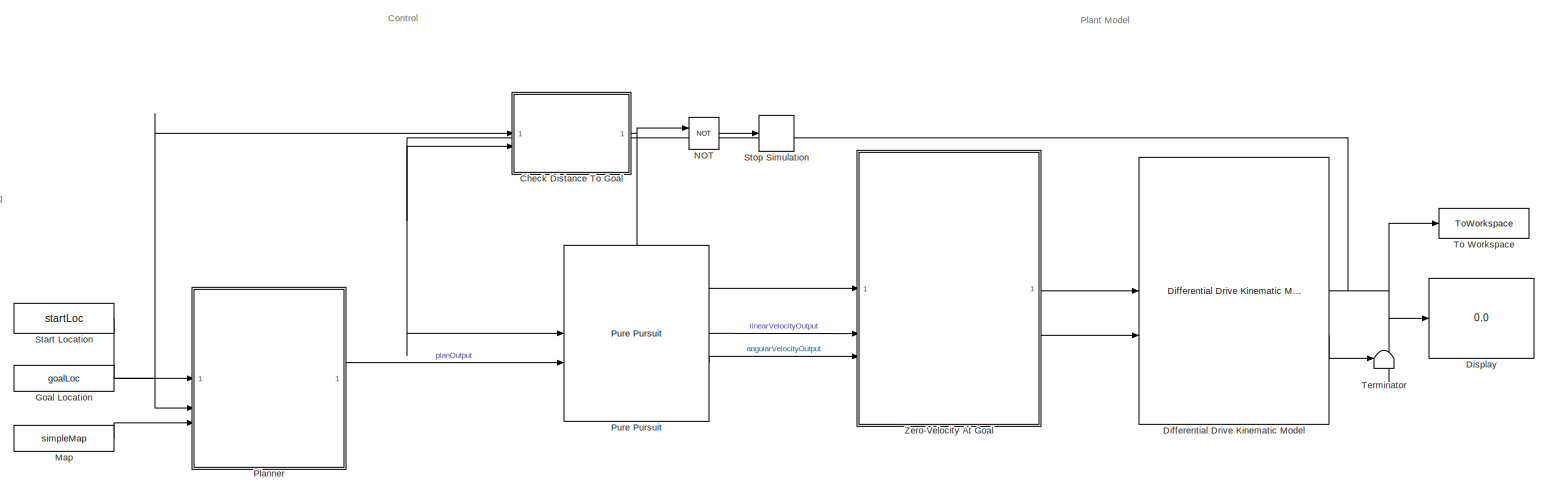
[diagram: root canvas - part 1/3, most of the canvas]
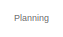
[diagram: root canvas - part 2/3, middle left region]
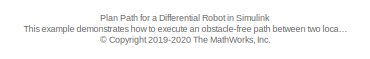
[diagram: root canvas - part 3/3, bottom left region]
MODEL slx_7b660b14549b
KIND model
CONFIG AbsTol = auto
CONFIG EnableMultiTasking = off
CONFIG FixedStep = auto
CONFIG MaxStep = auto
CONFIG MinStep = auto
CONFIG RelTol = 1e-3
CONFIG SampleTimeConstraint = Unconstrained
CONFIG SolverName = VariableStepAuto
CONFIG StartTime = 0.0
CONFIG StopTime = inf
WORKSPACE source: mxarray member
WORKSPACE Sig: Simulink.Signal (value not decoded)
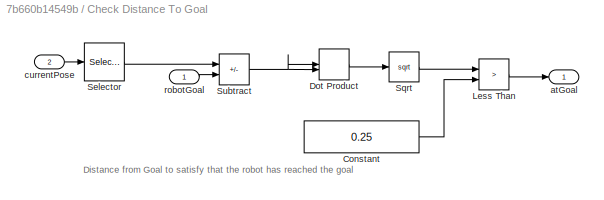
BLOCK [SubSystem] Check Distance To Goal
BLOCK [Constant] Check Distance To Goal/Constant
  Value = 0.25
BLOCK [DotProduct] Check Distance To Goal/Dot Product
  OutDataTypeStr = Inherit: Inherit via internal rule
BLOCK [RelationalOperator] Check Distance To Goal/Less Than
  InputSameDT = off
  Operator = >
  OutDataTypeStr = boolean
  RndMeth = Simplest
BLOCK [Selector] Check Distance To Goal/Selector
  IndexOptions = Index vector (dialog)
  Indices = [1 2]
  InputPortWidth = 3
  OutputSizes = 1
BLOCK [Sqrt] Check Distance To Goal/Sqrt
BLOCK [Sum] Check Distance To Goal/Subtract
  IconShape = rectangular
  Inputs = +-
BLOCK [Outport] Check Distance To Goal/atGoal
BLOCK [Inport] Check Distance To Goal/currentPose
  Port = 2
BLOCK [Inport] Check Distance To Goal/robotGoal
BLOCK [Reference] Differential Drive Kinematic Model  REF=robotmobilelib/Differential Drive Kinematic Model
  SourceBlock = robotmobilelib/Differential Drive Kinematic Model
  SourceType = Differential Drive Kinematic Model
BLOCK [Display] Display
  Decimation = 1
BLOCK [Constant] Goal Location
  Value = goalLoc
BLOCK [Constant] Map
  Value = simpleMap
BLOCK [Logic] NOT
  AllPortsSameDT = off
  IconShape = distinctive
  Operator = NOT
  OutDataTypeStr = boolean
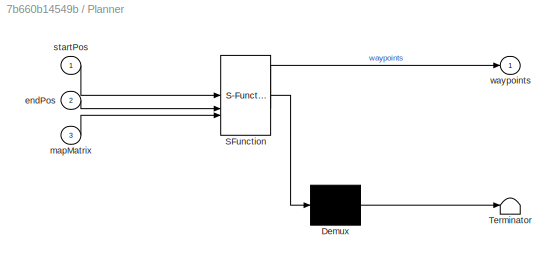
BLOCK [SubSystem] Planner
  ErrorFcn = Stateflow.Translate.translate
  PermitHierarchicalResolution = ExplicitOnly
  SFBlockType = MATLAB Function
  TreatAsAtomicUnit = on
BLOCK [Demux] Planner/ Demux 
  Outputs = 1
BLOCK [S-Function] Planner/ SFunction 
  EnableBusSupport = off
  FunctionName = sf_sfun
  PortCounts = [3 2]
  SFcnIsStateOwnerBlock = off
  SFunctionDeploymentMode = off
  Tag = Stateflow S-Function 3
BLOCK [Terminator] Planner/ Terminator 
BLOCK [Inport] Planner/endPos
  Port = 2
BLOCK [Inport] Planner/mapMatrix
  Port = 3
BLOCK [Inport] Planner/startPos
BLOCK [Outport] Planner/waypoints
  VectorParamsAs1DForOutWhenUnconnected = off
BLOCK [Reference] Pure Pursuit  REF=robotalgslib/Pure Pursuit
  SourceBlock = robotalgslib/Pure Pursuit
  SourceType = nav.slalgs.internal.PurePursuit
BLOCK [Constant] Start Location
  Value = startLoc
BLOCK [Stop] Stop Simulation
BLOCK [Terminator] Terminator
BLOCK [ToWorkspace] To Workspace
  FixptAsFi = on
  MaxDataPoints = inf
  SampleTime = -1
  VariableName = Pose
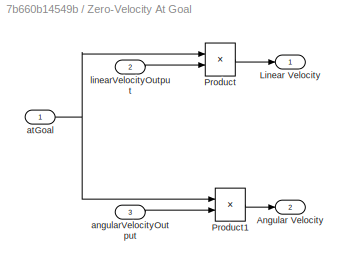
BLOCK [SubSystem] Zero-Velocity At Goal
BLOCK [Outport] Zero-Velocity At Goal/Angular Velocity
  OutDataTypeStr = double
  Port = 2
BLOCK [Outport] Zero-Velocity At Goal/Linear Velocity
  OutDataTypeStr = double
BLOCK [Product] Zero-Velocity At Goal/Product
BLOCK [Product] Zero-Velocity At Goal/Product1
BLOCK [Inport] Zero-Velocity At Goal/angularVelocityOutput
  Port = 3
BLOCK [Inport] Zero-Velocity At Goal/atGoal
BLOCK [Inport] Zero-Velocity At Goal/linearVelocityOutput
  Port = 2
ANNOTATION (root): P lan Path for a Differential Robot in Simulink This example demonstrates how to execute an obstacle-free path between two locations on a given map in Simulink®. The path is generated using a probabilistic road map (PRM) planning algorithm ( mobileRobotPRM) . Control commands for navigating this path are generated using the Pure Pursuit controller block. A differential drive kinematic motion model...<+94ch>
ANNOTATION (root): Control
ANNOTATION (root): Planning
ANNOTATION (root): Plant Model
ANNOTATION Check Distance To Goal: Distance from Goal to satisfy that the robot has reached the goal
LINE Check Distance To Goal/Constant:1 -> Check Distance To Goal/Less Than:2
LINE Check Distance To Goal/Dot Product:1 -> Check Distance To Goal/Sqrt:1
LINE Check Distance To Goal/Less Than:1 -> Check Distance To Goal/atGoal:1
LINE Check Distance To Goal/Selector:1 -> Check Distance To Goal/Subtract:1
LINE Check Distance To Goal/Sqrt:1 -> Check Distance To Goal/Less Than:1
NET Check Distance To Goal/Subtract:1 -> Check Distance To Goal/Dot Product:1, Check Distance To Goal/Dot Product:2
LINE Check Distance To Goal/currentPose:1 -> Check Distance To Goal/Selector:1
LINE Check Distance To Goal/robotGoal:1 -> Check Distance To Goal/Subtract:2
NET Check Distance To Goal:1 -> NOT:1, Zero-Velocity At Goal:1
NET Differential Drive Kinematic Model:1 -> Check Distance To Goal:2, Display:1, Pure Pursuit:1, To Workspace:1
LINE Differential Drive Kinematic Model:2 -> Terminator:1
NET Goal Location:1 -> Check Distance To Goal:1, Planner:2
LINE Map:1 -> Planner:3
LINE NOT:1 -> Stop Simulation:1
LINE Planner:1 -> Pure Pursuit:2
LINE Pure Pursuit:1 -> Zero-Velocity At Goal:2
LINE Pure Pursuit:2 -> Zero-Velocity At Goal:3
LINE Start Location:1 -> Planner:1
LINE Zero-Velocity At Goal/Product1:1 -> Zero-Velocity At Goal/Angular Velocity:1
LINE Zero-Velocity At Goal/Product:1 -> Zero-Velocity At Goal/Linear Velocity:1
LINE Zero-Velocity At Goal/angularVelocityOutput:1 -> Zero-Velocity At Goal/Product1:2
NET Zero-Velocity At Goal/atGoal:1 -> Zero-Velocity At Goal/Product1:1, Zero-Velocity At Goal/Product:1
LINE Zero-Velocity At Goal/linearVelocityOutput:1 -> Zero-Velocity At Goal/Product:2
LINE Zero-Velocity At Goal:1 -> Differential Drive Kinematic Model:1
LINE Zero-Velocity At Goal:2 -> Differential Drive Kinematic Model:2
note: NET lines group one-source signal fan-out (src -> all destinations, sorted); 1:1 wires keep LINE
CHART Planner states=1 transitions=1
  STATE_LABEL 'eML_blk_kernel()'
  STATE_LABEL 'SCRIPT:\nfunction waypoints = planning(startPos, endPos, mapMatrix)\n\npersistent waypointsInternal\npersistent prevStartPos\npersistent prevEndPos\n\n% Set constant parameters\nmaxNumNodes = 100;\n\n% Initialize persistent variables that are used downstream\nif isempty(prevStartPos)\n    prevStartPos = startPos;\nend\n\nif isempty(prevEndPos)\n    prevEndPos = endPos;\nend\n\nisNewPath = (~isequal(prevStartPos, sta...<+1019ch>'
CHART  states=0 transitions=0
